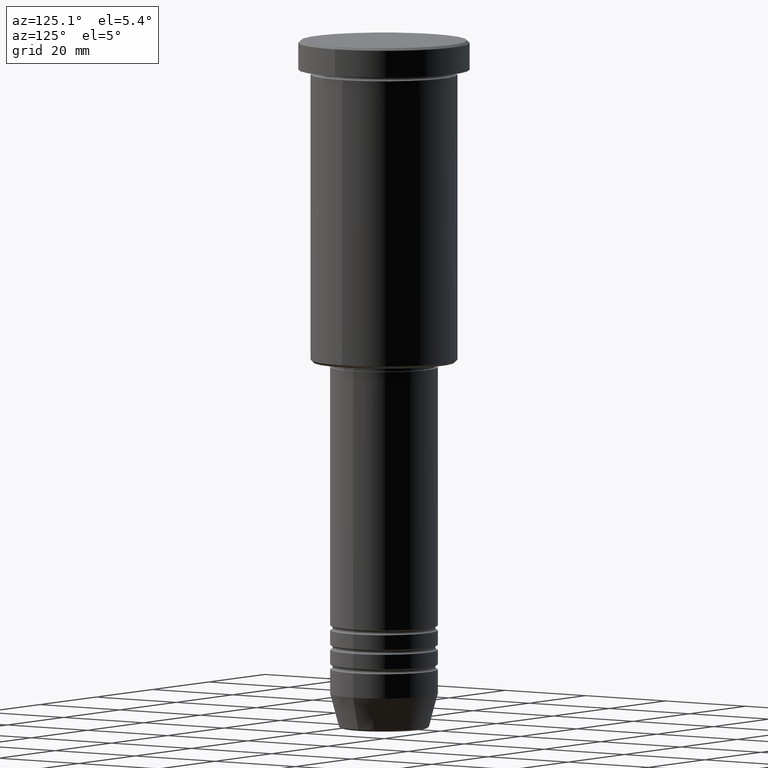
[diagram: clean part render]
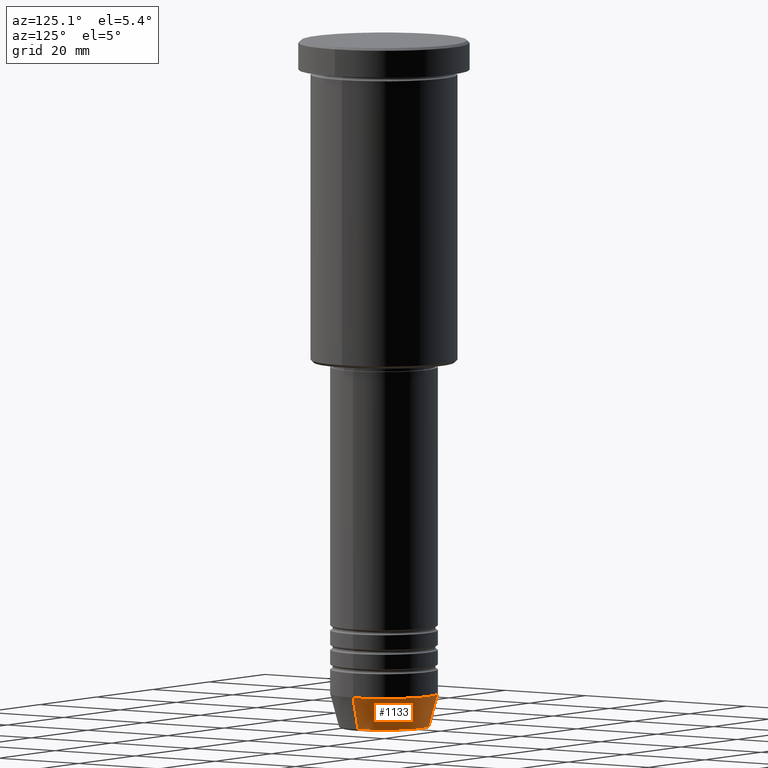
[diagram: same view with one face highlighted and labeled with its STEP entity id]
A machine part, auxiliary view. The second image highlights one B-rep face of the part: STEP entity #1133.
In plain terms, the highlighted conical surface has half-angle 15 deg.
Its self-contained STEP definition (entity closure, byte-faithful):
#12 = CIRCLE ( 'NONE', #279, 9.223655072137189492 ) ;
#29 = VERTEX_POINT ( 'NONE', #227 ) ;
#57 = DIRECTION ( 'NONE',  ( -0.2588190451025213501, 3.169619151431772337E-17, 0.9659258262890680902 ) ) ;
#66 = CONICAL_SURFACE ( 'NONE', #98, 11.00000000000000000, 0.2617993877991500740 ) ;
#98 = AXIS2_PLACEMENT_3D ( 'NONE', #1047, #1157, #199 ) ;
#167 = ORIENTED_EDGE ( 'NONE', *, *, #787, .T. ) ;
#196 = DIRECTION ( 'NONE',  ( 1.000000000000000000, 0.000000000000000000, 0.000000000000000000 ) ) ;
#199 = DIRECTION ( 'NONE',  ( 1.000000000000000000, 0.000000000000000000, 0.000000000000000000 ) ) ;
#207 = EDGE_CURVE ( 'NONE', #716, #311, #1005, .T. ) ;
#208 = DIRECTION ( 'NONE',  ( -0.000000000000000000, -0.000000000000000000, 1.000000000000000000 ) ) ;
#227 = CARTESIAN_POINT ( 'NONE',  ( 9.223655072137189492, 0.000000000000000000, -140.6294095225512706 ) ) ;
#279 = AXIS2_PLACEMENT_3D ( 'NONE', #394, #208, #196 ) ;
#306 = CARTESIAN_POINT ( 'NONE',  ( -11.00000000000000000, 1.347111479062088405E-15, -134.0000000000000000 ) ) ;
#311 = VERTEX_POINT ( 'NONE', #306 ) ;
#312 = EDGE_LOOP ( 'NONE', ( #734, #167, #981, #964 ) ) ;
#381 = FACE_OUTER_BOUND ( 'NONE', #312, .T. ) ;
#394 = CARTESIAN_POINT ( 'NONE',  ( 0.000000000000000000, 0.000000000000000000, -140.6294095225512706 ) ) ;
#552 = VERTEX_POINT ( 'NONE', #733 ) ;
#596 = CARTESIAN_POINT ( 'NONE',  ( -11.00000000000000000, 1.347111479062088405E-15, -134.0000000000000000 ) ) ;
#668 = DIRECTION ( 'NONE',  ( -0.000000000000000000, -0.000000000000000000, 1.000000000000000000 ) ) ;
#695 = CARTESIAN_POINT ( 'NONE',  ( 11.00000000000000000, 0.000000000000000000, -134.0000000000000000 ) ) ;
#716 = VERTEX_POINT ( 'NONE', #695 ) ;
#733 = CARTESIAN_POINT ( 'NONE',  ( -9.223655072137189492, 1.238341722557647202E-15, -140.6294095225512706 ) ) ;
#734 = ORIENTED_EDGE ( 'NONE', *, *, #975, .T. ) ;
#787 = EDGE_CURVE ( 'NONE', #552, #311, #1060, .T. ) ;
#788 = AXIS2_PLACEMENT_3D ( 'NONE', #846, #668, #1009 ) ;
#846 = CARTESIAN_POINT ( 'NONE',  ( 0.000000000000000000, 0.000000000000000000, -134.0000000000000000 ) ) ;
#871 = DIRECTION ( 'NONE',  ( 0.2588190451025213501, 0.000000000000000000, 0.9659258262890680902 ) ) ;
#880 = LINE ( 'NONE', #967, #993 ) ;
#964 = ORIENTED_EDGE ( 'NONE', *, *, #1075, .F. ) ;
#967 = CARTESIAN_POINT ( 'NONE',  ( 11.00000000000000000, 0.000000000000000000, -134.0000000000000000 ) ) ;
#975 = EDGE_CURVE ( 'NONE', #29, #552, #12, .T. ) ;
#981 = ORIENTED_EDGE ( 'NONE', *, *, #207, .F. ) ;
#993 = VECTOR ( 'NONE', #871, 1000.000000000000000 ) ;
#1005 = CIRCLE ( 'NONE', #788, 11.00000000000000000 ) ;
#1009 = DIRECTION ( 'NONE',  ( 1.000000000000000000, 0.000000000000000000, 0.000000000000000000 ) ) ;
#1047 = CARTESIAN_POINT ( 'NONE',  ( 0.000000000000000000, 0.000000000000000000, -134.0000000000000000 ) ) ;
#1060 = LINE ( 'NONE', #596, #1110 ) ;
#1075 = EDGE_CURVE ( 'NONE', #29, #716, #880, .T. ) ;
#1110 = VECTOR ( 'NONE', #57, 1000.000000000000000 ) ;
#1133 = ADVANCED_FACE ( 'NONE', ( #381 ), #66, .T. ) ;
#1157 = DIRECTION ( 'NONE',  ( -0.000000000000000000, -0.000000000000000000, 1.000000000000000000 ) ) ;